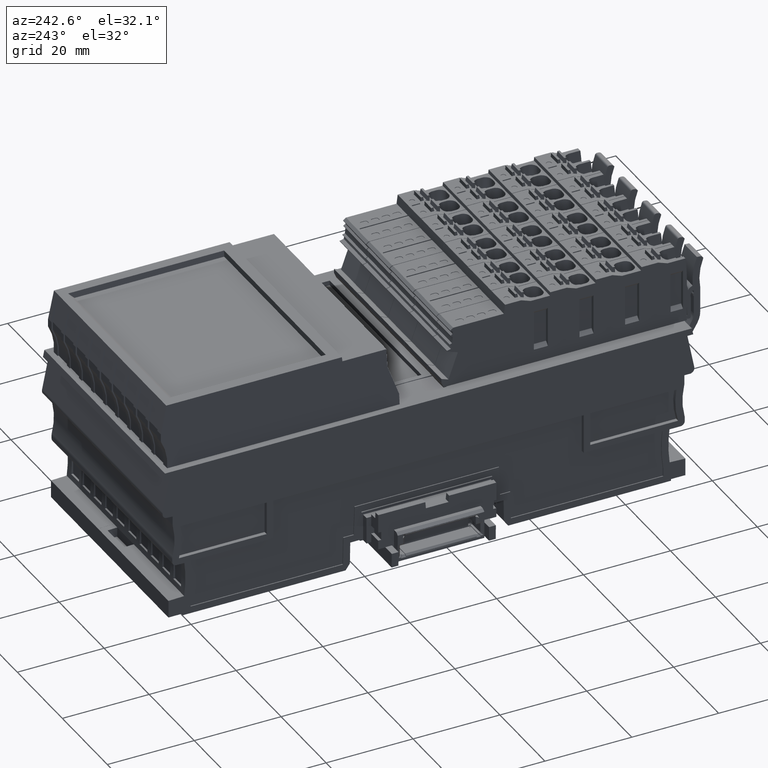
[diagram: clean part render]
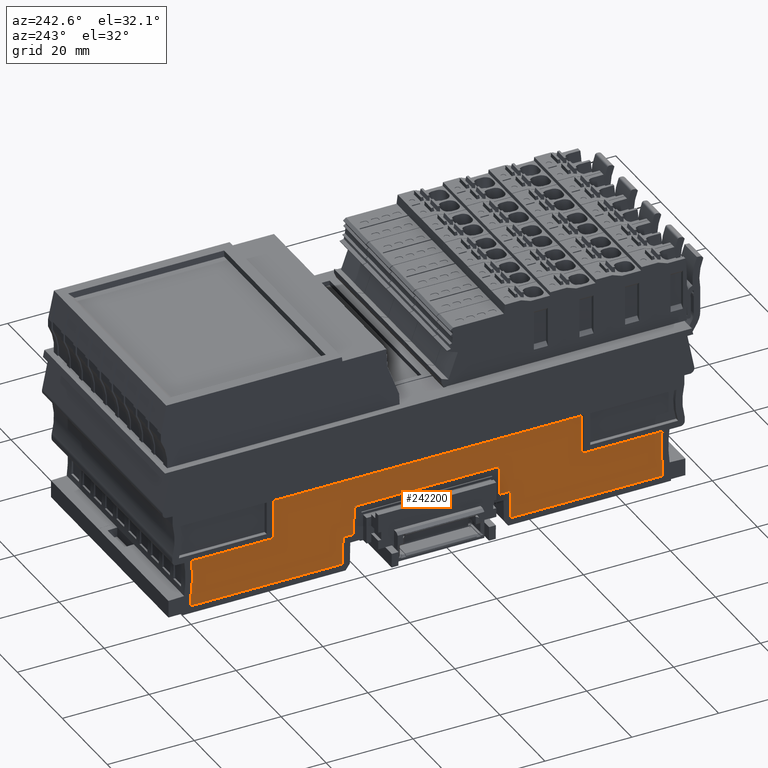
[diagram: same view with one face highlighted and labeled with its STEP entity id]
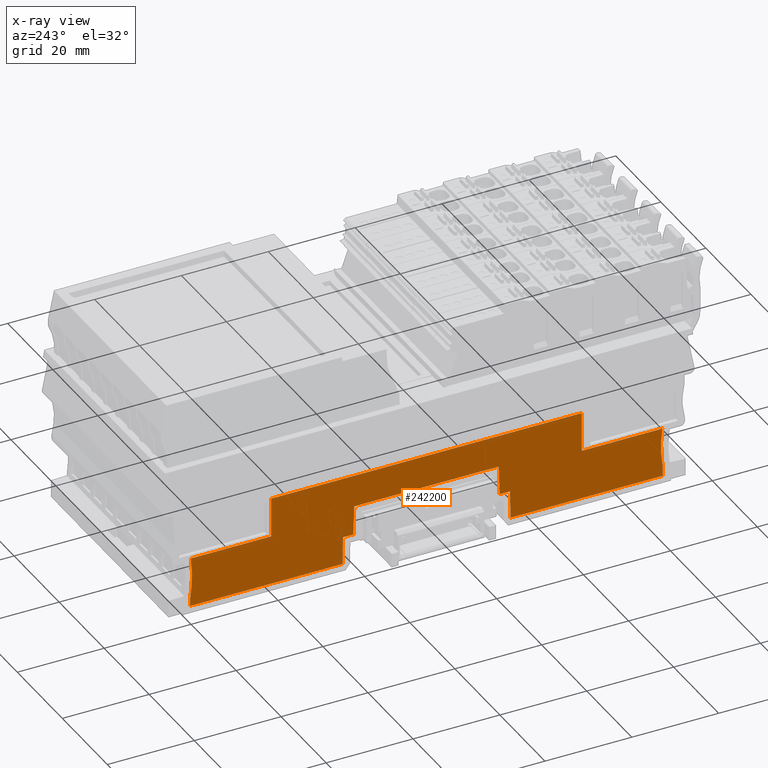
[diagram: x-ray of the same camera — body ghosted, the highlighted face saturated]
A machine part, auxiliary view. The second image highlights one B-rep face of the part: STEP entity #242200.
The next image is the same camera in x-ray: the body ghosted, the highlighted face saturated — about 0% of this face is hidden behind the body in this view.
In plain terms, the highlighted planar face has unit normal (1, -0, -0).
Its self-contained STEP definition (entity closure, byte-faithful):
#98230=CARTESIAN_POINT('',(58.9161795155466,13.5129599031929,
-48.9999999785029));
#98240=VERTEX_POINT('',#98230);
#98270=CARTESIAN_POINT('',(0.,6.27896267125532,-48.9999999787221));
#98280=DIRECTION('',(0.992546151641231,0.121869343405886,
3.69326097482414E-12));
#98290=VECTOR('',#98280,1.);
#98300=LINE('',#98270,#98290);
#98310=CARTESIAN_POINT('',(77.3048383652545,15.7708033056614,
-48.9999999784345));
#98320=VERTEX_POINT('',#98310);
#98330=EDGE_CURVE('',#98240,#98320,#98300,.T.);
#105820=CARTESIAN_POINT('',(-30.4390629300393,2.54151569512497,
-48.9999999788342));
#105830=VERTEX_POINT('',#105820);
#105860=CARTESIAN_POINT('',(0.,6.2789626712721,-48.9999999787221));
#105870=DIRECTION('',(0.992546151641376,0.121869343404709,
3.69326097482414E-12));
#105880=VECTOR('',#105870,1.);
#105890=LINE('',#105860,#105880);
#105900=CARTESIAN_POINT('',(-12.0504042162178,4.79935908088669,
-48.9999999787669));
#105910=VERTEX_POINT('',#105900);
#105920=EDGE_CURVE('',#105830,#105910,#105890,.T.);
#112600=CARTESIAN_POINT('',(-30.2516484011371,0.,-48.9999999788358));
#112610=DIRECTION('',(-0.121869343405539,0.992546151641274,
-1.24691923453213E-14));
#112620=VECTOR('',#112610,1.);
#112630=LINE('',#112600,#112620);
#112640=CARTESIAN_POINT('',(-29.1725454180063,-8.7885885260494,
-48.9999999788357));
#112650=VERTEX_POINT('',#112640);
#112660=CARTESIAN_POINT('',(-29.407858278162,-6.87211907399002,
-48.9999999788341));
#112670=VERTEX_POINT('',#112660);
#112680=EDGE_CURVE('',#112650,#112670,#112630,.T.);
#113010=CARTESIAN_POINT('',(-62.9903501120011,-5.78757205789167,
-48.9999999789584));
#113020=DIRECTION('',(-3.71422913355509E-12,-4.00157385418018E-13,1.));
#113030=DIRECTION('',(-0.992546151641291,-0.121869343405398,
-3.73531075064378E-12));
#113040=AXIS2_PLACEMENT_3D('',#113010,#113020,#113030);
#113050=CIRCLE('',#113040,33.6);
#113060=EDGE_CURVE('',#112670,#105830,#113050,.T.);
#113470=CARTESIAN_POINT('',(5.63251622535159,-4.51506431493533,
-48.9999999787062));
#113480=VERTEX_POINT('',#113470);
#113510=CARTESIAN_POINT('',(0.,-5.20665034644942,-48.9999999787272));
#113520=DIRECTION('',(0.992546151641198,0.121869343406155,
3.69326097482414E-12));
#113530=VECTOR('',#113520,1.);
#113540=LINE('',#113510,#113530);
#113550=EDGE_CURVE('',#112650,#113480,#113540,.T.);
#141780=CARTESIAN_POINT('',(78.8169419985216,4.47085326857158,
-48.9999999784339));
#141790=VERTEX_POINT('',#141780);
#141820=CARTESIAN_POINT('',(0.,-5.20665034642259,-48.9999999787272));
#141830=DIRECTION('',(-0.992546151641328,-0.121869343405098,
-3.69326097482414E-12));
#141840=VECTOR('',#141830,1.);
#141850=LINE('',#141820,#141840);
#141860=CARTESIAN_POINT('',(44.0123464657399,0.197386288677552,
-48.9999999785634));
#141870=VERTEX_POINT('',#141860);
#141880=EDGE_CURVE('',#141790,#141870,#141850,.T.);
#142170=CARTESIAN_POINT('',(78.5816292602456,6.38732172800832,
-48.9999999784339));
#142180=VERTEX_POINT('',#142170);
#142210=CARTESIAN_POINT('',(79.3658937539641,0.,-48.9999999784338));
#142220=DIRECTION('',(0.121869343405056,-0.992546151641333,
1.24691923453213E-14));
#142230=VECTOR('',#142220,1.);
#142240=LINE('',#142210,#142230);
#142250=EDGE_CURVE('',#142180,#141790,#142240,.T.);
#142430=CARTESIAN_POINT('',(110.904201894314,15.5639931460864,
-48.9999999783114));
#142440=DIRECTION('',(-3.66725161060285E-12,-4.37712887890379E-13,1.));
#142450=DIRECTION('',(-1.,0.,-3.66725161060285E-12));
#142460=AXIS2_PLACEMENT_3D('',#142430,#142440,#142450);
#142470=CIRCLE('',#142460,33.6);
#142480=EDGE_CURVE('',#98320,#142180,#142470,.T.);
#208640=CARTESIAN_POINT('',(7.32291121928741,2.14055297504755,
-48.9999999786971));
#208650=VERTEX_POINT('',#208640);
#208680=CARTESIAN_POINT('',(0.,1.24141253644792,-48.9999999787243));
#208690=DIRECTION('',(-0.992546151641183,-0.121869343406278,
-3.69326097482414E-12));
#208700=VECTOR('',#208690,1.);
#208710=LINE('',#208680,#208700);
#208720=CARTESIAN_POINT('',(4.96343215569166,1.85084537426162,
-48.9999999787059));
#208730=VERTEX_POINT('',#208720);
#208740=EDGE_CURVE('',#208650,#208730,#208710,.T.);
#216650=CARTESIAN_POINT('',(57.8071684905542,22.5451298831654,
-48.999999978503));
#216660=VERTEX_POINT('',#216650);
#216690=CARTESIAN_POINT('',(60.5753623637605,0.,-48.9999999785027));
#216700=DIRECTION('',(0.121869343405272,-0.992546151641307,
1.24691923453213E-14));
#216710=VECTOR('',#216700,1.);
#216720=LINE('',#216690,#216710);
#216730=EDGE_CURVE('',#216660,#98240,#216720,.T.);
#220670=CARTESIAN_POINT('',(-13.1594152412155,13.8315290608525,
-48.9999999787671));
#220680=VERTEX_POINT('',#220670);
#220710=CARTESIAN_POINT('',(0.,15.4473020829894,-48.9999999787181));
#220720=DIRECTION('',(0.992546151641274,0.121869343405538,
3.69326097482414E-12));
#220730=VECTOR('',#220720,1.);
#220740=LINE('',#220710,#220730);
#220750=EDGE_CURVE('',#220680,#216660,#220740,.T.);
#240870=CARTESIAN_POINT('',(5.15796384335034,0.,-48.999999978706));
#240880=DIRECTION('',(0.104528463268663,-0.994521895368167,
-5.1986193128073E-14));
#240890=VECTOR('',#240880,1.);
#240900=LINE('',#240870,#240890);
#240910=EDGE_CURVE('',#208730,#113480,#240900,.T.);
#241080=CARTESIAN_POINT('',(-11.4611170188519,0.,-48.9999999787669));
#241090=DIRECTION('',(-0.121869343405931,0.992546151641226,
-1.24761312392252E-14));
#241100=VECTOR('',#241090,1.);
#241110=LINE('',#241080,#241100);
#241120=EDGE_CURVE('',#105910,#220680,#241110,.T.);
#241620=CARTESIAN_POINT('',(73.2175611522802,5.97522897245488,
-48.9999999784538));
#241630=DIRECTION('',(-3.66725161060285E-12,-4.37712887890379E-13,1.));
#241640=DIRECTION('',(0.992546151641236,0.121869343405849,
3.69326025545146E-12));
#241650=AXIS2_PLACEMENT_3D('',#241620,#241630,#241640);
#241660=PLANE('',#241650);
#241670=CARTESIAN_POINT('',(7.51018533828295,0.,-48.9999999786973));
#241680=DIRECTION('',(-0.0871557427486701,0.996194698091657,
1.16434639707563E-13));
#241690=VECTOR('',#241680,1.);
#241700=LINE('',#241670,#241690);
#241710=CARTESIAN_POINT('',(6.7386118034542,8.81912585841588,
-48.9999999786963));
#241720=VERTEX_POINT('',#241710);
#241730=EDGE_CURVE('',#208650,#241720,#241700,.T.);
#241740=ORIENTED_EDGE('',*,*,#241730,.F.);
#241750=CARTESIAN_POINT('',(0.,7.99172836703624,-48.9999999787214));
#241760=DIRECTION('',(0.992546151641369,0.121869343404768,
3.69326097482414E-12));
#241770=VECTOR('',#241760,1.);
#241780=LINE('',#241750,#241770);
#241790=CARTESIAN_POINT('',(39.7132438403996,12.8679015739943,
-48.9999999785736));
#241800=VERTEX_POINT('',#241790);
#241810=EDGE_CURVE('',#241720,#241800,#241780,.T.);
#241820=ORIENTED_EDGE('',*,*,#241810,.F.);
#241830=CARTESIAN_POINT('',(41.7513192293472,0.,-48.9999999785718));
#241840=DIRECTION('',(-0.15643446504018,0.987688340595146,
-1.41373024398206E-13));
#241850=VECTOR('',#241840,1.);
#241860=LINE('',#241830,#241850);
#241870=CARTESIAN_POINT('',(40.761993626198,6.24635602539248,
-48.9999999785727));
#241880=VERTEX_POINT('',#241870);
#241890=EDGE_CURVE('',#241880,#241800,#241860,.T.);
#241900=ORIENTED_EDGE('',*,*,#241890,.T.);
#241910=CARTESIAN_POINT('',(0.,1.24141253648,-48.9999999787243));
#241920=DIRECTION('',(0.992546151641343,0.121869343404974,
3.69326097482414E-12));
#241930=VECTOR('',#241920,1.);
#241940=LINE('',#241910,#241930);
#241950=CARTESIAN_POINT('',(43.1215029398174,6.53606734041113,
-48.9999999785639));
#241960=VERTEX_POINT('',#241950);
#241970=EDGE_CURVE('',#241880,#241960,#241940,.T.);
#241980=ORIENTED_EDGE('',*,*,#241970,.F.);
#241990=CARTESIAN_POINT('',(44.0400872995095,0.,-48.9999999785634));
#242000=DIRECTION('',(0.139173100960016,-0.990268068741577,
7.69384556065234E-14));
#242010=VECTOR('',#242000,1.);
#242020=LINE('',#241990,#242010);
#242030=EDGE_CURVE('',#241960,#141870,#242020,.T.);
#242040=ORIENTED_EDGE('',*,*,#242030,.F.);
#242050=ORIENTED_EDGE('',*,*,#141880,.T.);
#242060=ORIENTED_EDGE('',*,*,#142250,.T.);
#242070=ORIENTED_EDGE('',*,*,#142480,.T.);
#242080=ORIENTED_EDGE('',*,*,#98330,.T.);
#242090=ORIENTED_EDGE('',*,*,#216730,.T.);
#242100=ORIENTED_EDGE('',*,*,#220750,.T.);
#242110=ORIENTED_EDGE('',*,*,#241120,.T.);
#242120=ORIENTED_EDGE('',*,*,#105920,.T.);
#242130=ORIENTED_EDGE('',*,*,#113060,.T.);
#242140=ORIENTED_EDGE('',*,*,#112680,.T.);
#242150=ORIENTED_EDGE('',*,*,#113550,.F.);
#242160=ORIENTED_EDGE('',*,*,#240910,.T.);
#242170=ORIENTED_EDGE('',*,*,#208740,.T.);
#242180=EDGE_LOOP('',(#242170,#242160,#242150,#242140,#242130,#242120,
#242110,#242100,#242090,#242080,#242070,#242060,#242050,#242040,#241980,
#241900,#241820,#241740));
#242190=FACE_OUTER_BOUND('',#242180,.T.);
#242200=ADVANCED_FACE('',(#242190),#241660,.F.);